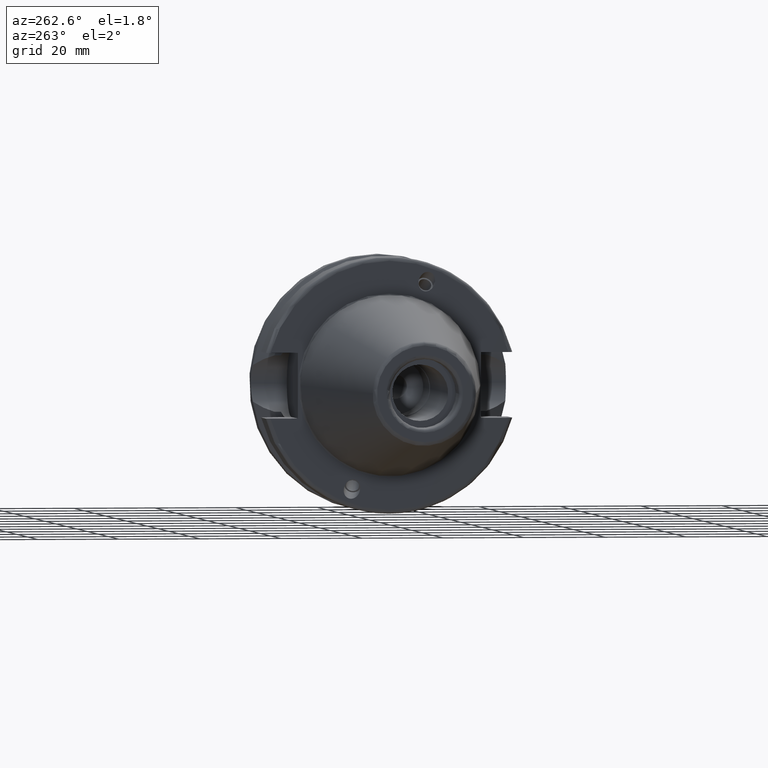
[diagram: clean part render]
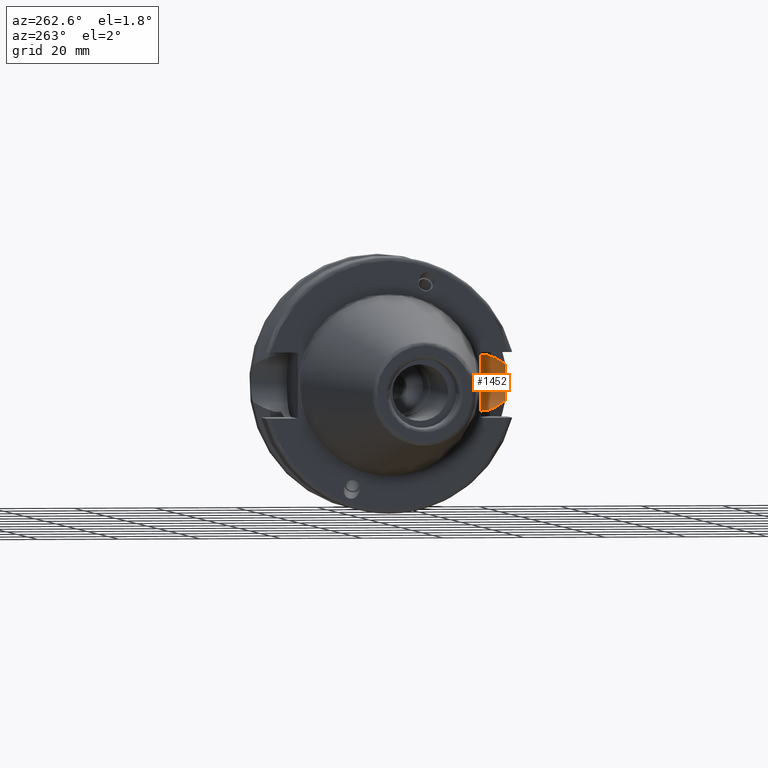
[diagram: same view with one face highlighted and labeled with its STEP entity id]
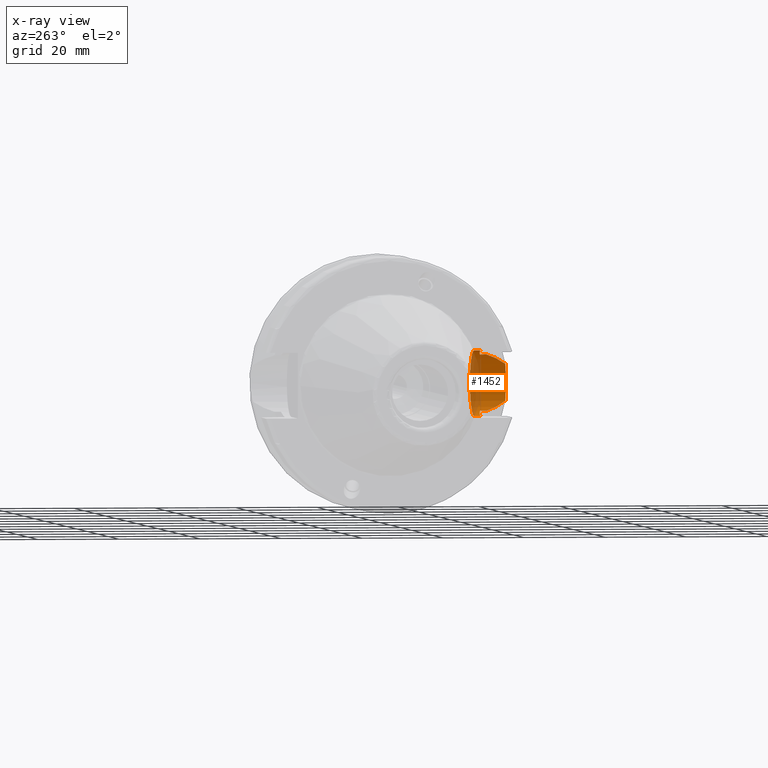
[diagram: x-ray of the same camera — body ghosted, the highlighted face saturated]
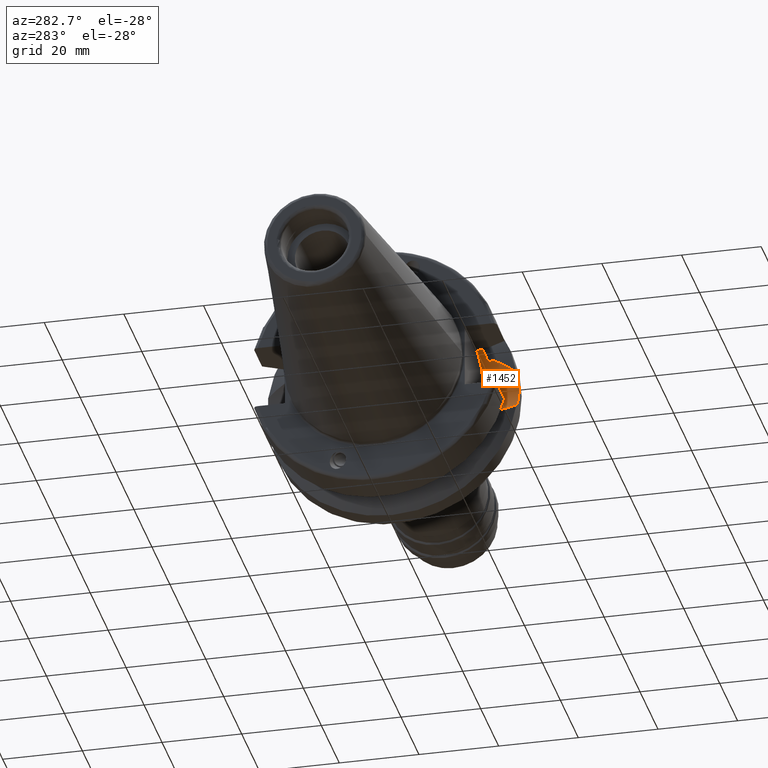
[diagram: same view with one face highlighted and labeled with its STEP entity id]
A machine part, auxiliary view. The second image highlights one B-rep face of the part: STEP entity #1452.
The next image is the same camera in x-ray: the body ghosted, the highlighted face saturated — about 30% of this face is hidden behind the body in this view.
A second angle (auxiliary view) of the same face is appended — the face is thin or edge-on in the first view.
In plain terms, the highlighted cylindrical surface (edge-blend (fillet) strip) has radius 8.05 mm, axis along (0, 1, 0).
Its self-contained STEP definition (entity closure, byte-faithful):
#101=B_SPLINE_CURVE_WITH_KNOTS('',3,(#2603,#2604,#2605,#2606,#2607,#2608),
 .UNSPECIFIED.,.F.,.F.,(4,2,4),(2.02525951614585,2.13846497015446,2.44402436414645),
 .UNSPECIFIED.);
#102=B_SPLINE_CURVE_WITH_KNOTS('',3,(#2612,#2613,#2614,#2615,#2616,#2617),
 .UNSPECIFIED.,.F.,.F.,(4,2,4),(3.12975744792547,3.62699288756974,3.70848737461386),
 .UNSPECIFIED.);
#103=B_SPLINE_CURVE_WITH_KNOTS('',3,(#2619,#2620,#2621,#2622,#2623,#2624),
 .UNSPECIFIED.,.F.,.F.,(4,2,4),(1.21877751840372,1.52344857393281,1.67526011710938),
 .UNSPECIFIED.);
#104=B_SPLINE_CURVE_WITH_KNOTS('',3,(#2626,#2627,#2628,#2629,#2630,#2631),
 .UNSPECIFIED.,.F.,.F.,(4,2,4),(0.762294919698051,0.914106462874623,1.21877751840372),
 .UNSPECIFIED.);
#105=B_SPLINE_CURVE_WITH_KNOTS('',3,(#2633,#2634,#2635,#2636,#2637,#2638),
 .UNSPECIFIED.,.F.,.F.,(4,2,4),(1.46421027899559,1.54570476603972,2.04294020568399),
 .UNSPECIFIED.);
#106=B_SPLINE_CURVE_WITH_KNOTS('',3,(#2642,#2643,#2644,#2645,#2646,#2647),
 .UNSPECIFIED.,.F.,.F.,(4,2,4),(0.,0.305559393991992,0.418764848000603),
 .UNSPECIFIED.);
#140=CYLINDRICAL_SURFACE('',#1643,8.05);
#204=FACE_OUTER_BOUND('',#303,.T.);
#303=EDGE_LOOP('',(#1184,#1185,#1186,#1187,#1188,#1189,#1190,#1191,#1192,
#1193,#1194));
#382=LINE('',#2610,#455);
#383=LINE('',#2640,#456);
#384=LINE('',#2649,#457);
#385=LINE('',#2652,#458);
#455=VECTOR('',#2021,10.);
#456=VECTOR('',#2022,10.);
#457=VECTOR('',#2023,10.);
#458=VECTOR('',#2026,10.);
#552=CIRCLE('',#1644,8.05);
#665=VERTEX_POINT('',#2601);
#666=VERTEX_POINT('',#2602);
#667=VERTEX_POINT('',#2609);
#668=VERTEX_POINT('',#2611);
#669=VERTEX_POINT('',#2618);
#670=VERTEX_POINT('',#2625);
#671=VERTEX_POINT('',#2632);
#672=VERTEX_POINT('',#2639);
#673=VERTEX_POINT('',#2641);
#674=VERTEX_POINT('',#2648);
#675=VERTEX_POINT('',#2650);
#850=EDGE_CURVE('',#665,#666,#101,.T.);
#851=EDGE_CURVE('',#667,#665,#382,.T.);
#852=EDGE_CURVE('',#668,#667,#102,.T.);
#853=EDGE_CURVE('',#669,#668,#103,.T.);
#854=EDGE_CURVE('',#670,#669,#104,.T.);
#855=EDGE_CURVE('',#671,#670,#105,.T.);
#856=EDGE_CURVE('',#672,#671,#383,.T.);
#857=EDGE_CURVE('',#673,#672,#106,.T.);
#858=EDGE_CURVE('',#674,#673,#384,.T.);
#859=EDGE_CURVE('',#674,#675,#552,.T.);
#860=EDGE_CURVE('',#675,#666,#385,.T.);
#1184=ORIENTED_EDGE('',*,*,#850,.F.);
#1185=ORIENTED_EDGE('',*,*,#851,.F.);
#1186=ORIENTED_EDGE('',*,*,#852,.F.);
#1187=ORIENTED_EDGE('',*,*,#853,.F.);
#1188=ORIENTED_EDGE('',*,*,#854,.F.);
#1189=ORIENTED_EDGE('',*,*,#855,.F.);
#1190=ORIENTED_EDGE('',*,*,#856,.F.);
#1191=ORIENTED_EDGE('',*,*,#857,.F.);
#1192=ORIENTED_EDGE('',*,*,#858,.F.);
#1193=ORIENTED_EDGE('',*,*,#859,.T.);
#1194=ORIENTED_EDGE('',*,*,#860,.T.);
#1452=ADVANCED_FACE('',(#204),#140,.F.);
#1643=AXIS2_PLACEMENT_3D('',#2600,#2019,#2020);
#1644=AXIS2_PLACEMENT_3D('',#2651,#2024,#2025);
#2019=DIRECTION('center_axis',(0.,1.,0.));
#2020=DIRECTION('ref_axis',(0.,0.,1.));
#2021=DIRECTION('',(0.,1.,0.));
#2022=DIRECTION('',(0.,-1.,0.));
#2023=DIRECTION('',(0.,-1.,0.));
#2024=DIRECTION('center_axis',(0.,1.,0.));
#2025=DIRECTION('ref_axis',(0.,0.,1.));
#2026=DIRECTION('',(0.,-1.,0.));
#2600=CARTESIAN_POINT('Origin',(14.95,-22.6,0.));
#2601=CARTESIAN_POINT('',(19.1,-24.5493380766162,-6.89782574439221));
#2602=CARTESIAN_POINT('',(14.95,-24.1960224003864,-8.05));
#2603=CARTESIAN_POINT('Ctrl Pts',(19.1,-24.5493380766162,-6.89782574439221));
#2604=CARTESIAN_POINT('Ctrl Pts',(18.7625417379862,-24.492291659194,-7.10085374759973));
#2605=CARTESIAN_POINT('Ctrl Pts',(18.4072379028184,-24.4390565244262,-7.28065599998141));
#2606=CARTESIAN_POINT('Ctrl Pts',(17.0497516664971,-24.2670783971366,-7.84501312719341));
#2607=CARTESIAN_POINT('Ctrl Pts',(15.9685313133066,-24.1960224003864,-8.05));
#2608=CARTESIAN_POINT('Ctrl Pts',(14.95,-24.1960224003864,-8.05));
#2609=CARTESIAN_POINT('',(19.1,-26.201311395455,-6.89782574439221));
#2610=CARTESIAN_POINT('',(19.1,-22.6,-6.89782574439221));
#2611=CARTESIAN_POINT('',(21.6309636926618,-31.1782420264945,-4.4907932637046));
#2612=CARTESIAN_POINT('Ctrl Pts',(21.6309636926618,-31.1782420264945,-4.4907932637046));
#2613=CARTESIAN_POINT('Ctrl Pts',(20.9728756148303,-29.8797957262939,-5.46983244373115));
#2614=CARTESIAN_POINT('Ctrl Pts',(20.1784155384866,-28.3157123387484,-6.18231368976925));
#2615=CARTESIAN_POINT('Ctrl Pts',(19.3406963650697,-26.6728819297428,-6.74867108656039));
#2616=CARTESIAN_POINT('Ctrl Pts',(19.2210929544554,-26.4384736933511,-6.82497151762395));
#2617=CARTESIAN_POINT('Ctrl Pts',(19.1,-26.201311395455,-6.89782574439221));
#2618=CARTESIAN_POINT('',(23.,-31.5,-1.51248507442265E-15));
#2619=CARTESIAN_POINT('Ctrl Pts',(23.,-31.5,8.32667268468867E-16));
#2620=CARTESIAN_POINT('Ctrl Pts',(23.,-31.5,-1.01557018509698));
#2621=CARTESIAN_POINT('Ctrl Pts',(22.7961189876535,-31.445974204441,-2.09580170425552));
#2622=CARTESIAN_POINT('Ctrl Pts',(22.1796133812044,-31.2997625705024,-3.58065358198869));
#2623=CARTESIAN_POINT('Ctrl Pts',(21.92482980253,-31.2412125047166,-4.05360796141051));
#2624=CARTESIAN_POINT('Ctrl Pts',(21.6309636926618,-31.1782420264945,-4.4907932637046));
#2625=CARTESIAN_POINT('',(21.6309636926618,-31.1782420264945,4.4907932637046));
#2626=CARTESIAN_POINT('Ctrl Pts',(21.6309636926618,-31.1782420264945,4.4907932637046));
#2627=CARTESIAN_POINT('Ctrl Pts',(21.92482980253,-31.2412125047166,4.05360796141051));
#2628=CARTESIAN_POINT('Ctrl Pts',(22.1796133812044,-31.2997625705024,3.58065358198869));
#2629=CARTESIAN_POINT('Ctrl Pts',(22.7961189876535,-31.445974204441,2.09580170425552));
#2630=CARTESIAN_POINT('Ctrl Pts',(23.,-31.5,1.01557018509698));
#2631=CARTESIAN_POINT('Ctrl Pts',(23.,-31.5,-2.77555756156289E-16));
#2632=CARTESIAN_POINT('',(19.1,-26.201311395455,6.89782574439221));
#2633=CARTESIAN_POINT('Ctrl Pts',(19.1,-26.201311395455,6.89782574439221));
#2634=CARTESIAN_POINT('Ctrl Pts',(19.2210929544554,-26.4384736933511,6.82497151762395));
#2635=CARTESIAN_POINT('Ctrl Pts',(19.3406963650697,-26.6728819297428,6.74867108656039));
#2636=CARTESIAN_POINT('Ctrl Pts',(20.1784155384866,-28.3157123387484,6.18231368976925));
#2637=CARTESIAN_POINT('Ctrl Pts',(20.9728756148303,-29.8797957262939,5.46983244373115));
#2638=CARTESIAN_POINT('Ctrl Pts',(21.6309636926618,-31.1782420264945,4.4907932637046));
#2639=CARTESIAN_POINT('',(19.1,-24.5493380766162,6.89782574439221));
#2640=CARTESIAN_POINT('',(19.1,-22.6,6.89782574439221));
#2641=CARTESIAN_POINT('',(14.95,-24.1960224003864,8.05));
#2642=CARTESIAN_POINT('Ctrl Pts',(14.95,-24.1960224003864,8.05));
#2643=CARTESIAN_POINT('Ctrl Pts',(15.9685313133066,-24.1960224003864,8.05));
#2644=CARTESIAN_POINT('Ctrl Pts',(17.0497516664971,-24.2670783971366,7.84501312719341));
#2645=CARTESIAN_POINT('Ctrl Pts',(18.4072379028184,-24.4390565244262,7.28065599998141));
#2646=CARTESIAN_POINT('Ctrl Pts',(18.7625417379862,-24.492291659194,7.10085374759973));
#2647=CARTESIAN_POINT('Ctrl Pts',(19.1,-24.5493380766162,6.89782574439221));
#2648=CARTESIAN_POINT('',(14.95,-22.6,8.05));
#2649=CARTESIAN_POINT('',(14.95,-22.6,8.05));
#2650=CARTESIAN_POINT('',(14.95,-22.6,-8.05));
#2651=CARTESIAN_POINT('Origin',(14.95,-22.6,0.));
#2652=CARTESIAN_POINT('',(14.95,-22.6,-8.05));